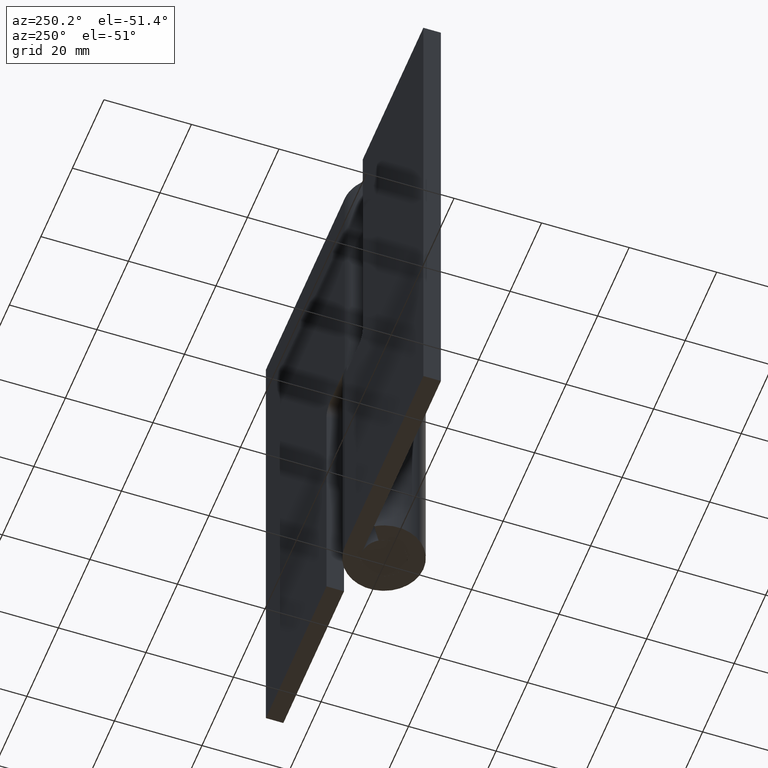
[diagram: clean part render]
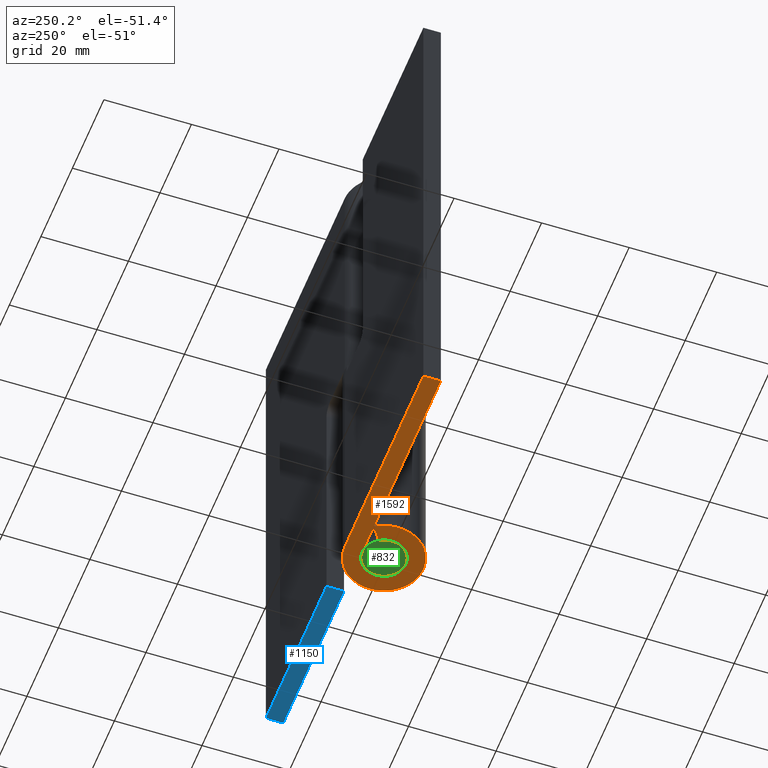
[diagram: same view with three faces highlighted in distinct colors, each labeled with its STEP entity id]
A machine part, auxiliary view with three faces highlighted in distinct colors.
Their STEP definitions:

[orange] entity #1592 — the highlighted face is a freeform B-spline surface patch.
#1515=CARTESIAN_POINT('',(-52.946972227244132,-9.893227405319044,0.0));
#1516=CARTESIAN_POINT('',(11.945583631738071,-9.893227405319044,0.0));
#1517=CARTESIAN_POINT('',(-52.946972227244132,9.898821068407905,0.0));
#1518=CARTESIAN_POINT('',(11.945583631738071,9.898821068407905,0.0));
#1519=B_SPLINE_SURFACE_WITH_KNOTS('',1,1,((#1515,#1517),(#1516,#1518)),.UNSPECIFIED.,.F.,.F.,.U.,(2,2),(2,2),(0.0,64.892555858982206),(0.0,19.792048473726950),.UNSPECIFIED.);
#1520=CARTESIAN_POINT('',(-49.999991999999899,5.0,0.0));
#1521=VERTEX_POINT('',#1520);
#1522=CARTESIAN_POINT('',(-49.999991999999899,9.0,0.0));
#1523=VERTEX_POINT('',#1522);
#1524=CARTESIAN_POINT('',(-49.999991999999899,5.0,0.0));
#1525=CARTESIAN_POINT('',(-49.999991999999899,9.0,0.0));
#1526=QUASI_UNIFORM_CURVE('',1,(#1524,#1525),.UNSPECIFIED.,.F.,.U.);
#1527=EDGE_CURVE('',#1521,#1523,#1526,.T.);
#1528=ORIENTED_EDGE('',*,*,#1527,.T.);
#1529=CARTESIAN_POINT('',(0.0,9.0,0.0));
#1530=VERTEX_POINT('',#1529);
#1531=CARTESIAN_POINT('',(-49.999991999999899,9.0,0.0));
#1532=CARTESIAN_POINT('',(0.0,9.0,0.0));
#1533=QUASI_UNIFORM_CURVE('',1,(#1531,#1532),.UNSPECIFIED.,.F.,.U.);
#1534=EDGE_CURVE('',#1523,#1530,#1533,.T.);
#1535=ORIENTED_EDGE('',*,*,#1534,.T.);
#1536=CARTESIAN_POINT('',(-7.516481889820520,4.950000000000000,0.0));
#1537=VERTEX_POINT('',#1536);
#1538=CARTESIAN_POINT('',(0.0,9.0,0.0));
#1539=CARTESIAN_POINT('',(7.011576975452233,9.0,0.0));
#1540=CARTESIAN_POINT('',(8.726614701295084,2.201407698528493,0.0));
#1541=CARTESIAN_POINT('',(10.441652427137935,-4.597184602943015,0.0));
#1542=CARTESIAN_POINT('',(4.269074841227313,-7.923067587746552,0.0));
#1543=CARTESIAN_POINT('',(-1.903502744683306,-11.248950572550088,0.0));
#1544=CARTESIAN_POINT('',(-6.638175985501282,-6.077385917112231,0.0));
#1545=CARTESIAN_POINT('',(-11.372849226319254,-0.905821261674372,0.0));
#1546=CARTESIAN_POINT('',(-7.516481889820531,4.949999999999997,0.0));
#1554=(BOUNDED_CURVE()B_SPLINE_CURVE(2,(#1538,#1539,#1540,#1541,#1542,#1543,#1544,#1545,#1546),.UNSPECIFIED.,.F.,.U.)B_SPLINE_CURVE_WITH_KNOTS((3,2,2,2,3),(0.0,0.250000000000000,0.500000000000000,0.750000000000000,1.0),.UNSPECIFIED.)CURVE()GEOMETRIC_REPRESENTATION_ITEM()RATIONAL_B_SPLINE_CURVE((1.0,0.788860207955774,1.0,0.788860207955774,1.0,0.788860207955774,1.0,0.788860207955774,1.0))REPRESENTATION_ITEM(''));
#1555=EDGE_CURVE('',#1530,#1537,#1554,.T.);
#1556=ORIENTED_EDGE('',*,*,#1555,.T.);
#1557=CARTESIAN_POINT('',(-4.175823272122515,2.750000000000000,0.0));
#1558=VERTEX_POINT('',#1557);
#1559=CARTESIAN_POINT('',(-7.516481889820520,4.950000000000000,0.0));
#1560=CARTESIAN_POINT('',(-4.175823272122515,2.750000000000000,0.0));
#1561=QUASI_UNIFORM_CURVE('',1,(#1559,#1560),.UNSPECIFIED.,.F.,.U.);
#1562=EDGE_CURVE('',#1537,#1558,#1561,.T.);
#1563=ORIENTED_EDGE('',*,*,#1562,.T.);
#1564=CARTESIAN_POINT('',(-1.914294E-015,5.0,0.0));
#1565=VERTEX_POINT('',#1564);
#1566=CARTESIAN_POINT('',(0.0,5.0,0.0));
#1567=CARTESIAN_POINT('',(3.895320541917908,5.0,0.0));
#1568=CARTESIAN_POINT('',(4.848119278497269,1.223004276960274,0.0));
#1569=CARTESIAN_POINT('',(5.800918015076634,-2.553991446079455,0.0));
#1570=CARTESIAN_POINT('',(2.371708245126286,-4.401704215414752,0.0));
#1571=CARTESIAN_POINT('',(-1.057501524824059,-6.249416984750051,0.0));
#1572=CARTESIAN_POINT('',(-3.687875547500712,-3.376325509506795,0.0));
#1573=CARTESIAN_POINT('',(-6.318249570177365,-0.503234034263541,0.0));
#1574=CARTESIAN_POINT('',(-4.175823272122518,2.749999999999999,0.0));
#1582=(BOUNDED_CURVE()B_SPLINE_CURVE(2,(#1566,#1567,#1568,#1569,#1570,#1571,#1572,#1573,#1574),.UNSPECIFIED.,.F.,.U.)B_SPLINE_CURVE_WITH_KNOTS((3,2,2,2,3),(0.0,0.250000000000000,0.500000000000000,0.750000000000000,1.0),.UNSPECIFIED.)CURVE()GEOMETRIC_REPRESENTATION_ITEM()RATIONAL_B_SPLINE_CURVE((1.0,0.788860207955774,1.0,0.788860207955774,1.0,0.788860207955774,1.0,0.788860207955774,1.0))REPRESENTATION_ITEM(''));
#1583=EDGE_CURVE('',#1565,#1558,#1582,.T.);
#1584=ORIENTED_EDGE('',*,*,#1583,.F.);
#1585=CARTESIAN_POINT('',(-1.914294E-015,5.0,0.0));
#1586=CARTESIAN_POINT('',(-49.999991999999899,5.0,0.0));
#1587=QUASI_UNIFORM_CURVE('',1,(#1585,#1586),.UNSPECIFIED.,.F.,.U.);
#1588=EDGE_CURVE('',#1565,#1521,#1587,.T.);
#1589=ORIENTED_EDGE('',*,*,#1588,.T.);
#1590=EDGE_LOOP('',(#1528,#1535,#1556,#1563,#1584,#1589));
#1591=FACE_OUTER_BOUND('',#1590,.T.);
#1592=ADVANCED_FACE('',(#1591),#1519,.F.);

[blue] entity #1150 — the highlighted face is a freeform B-spline surface patch.
#900=CARTESIAN_POINT('',(11.500000000000000,9.0,0.0));
#901=VERTEX_POINT('',#900);
#907=CARTESIAN_POINT('',(11.500000000000000,5.0,0.0));
#908=VERTEX_POINT('',#907);
#909=CARTESIAN_POINT('',(11.500000000000000,9.0,0.0));
#910=CARTESIAN_POINT('',(11.500000000000000,5.0,0.0));
#911=QUASI_UNIFORM_CURVE('',1,(#909,#910),.UNSPECIFIED.,.F.,.U.);
#912=EDGE_CURVE('',#901,#908,#911,.T.);
#1123=CARTESIAN_POINT('',(9.576925074620473,4.800200007752776,0.0));
#1124=CARTESIAN_POINT('',(51.923075958029997,4.800200007752776,0.0));
#1125=CARTESIAN_POINT('',(9.576925074620473,9.199800099535585,0.0));
#1126=CARTESIAN_POINT('',(51.923075958029997,9.199800099535585,0.0));
#1127=B_SPLINE_SURFACE_WITH_KNOTS('',1,1,((#1123,#1125),(#1124,#1126)),.UNSPECIFIED.,.F.,.F.,.U.,(2,2),(2,2),(0.0,42.346150883409521),(0.0,4.399600091782808),.UNSPECIFIED.);
#1128=ORIENTED_EDGE('',*,*,#912,.F.);
#1129=CARTESIAN_POINT('',(50.0,9.0,0.0));
#1130=VERTEX_POINT('',#1129);
#1131=CARTESIAN_POINT('',(11.500000000000000,9.0,0.0));
#1132=CARTESIAN_POINT('',(50.0,9.0,0.0));
#1133=QUASI_UNIFORM_CURVE('',1,(#1131,#1132),.UNSPECIFIED.,.F.,.U.);
#1134=EDGE_CURVE('',#901,#1130,#1133,.T.);
#1135=ORIENTED_EDGE('',*,*,#1134,.T.);
#1136=CARTESIAN_POINT('',(50.0,5.0,0.0));
#1137=VERTEX_POINT('',#1136);
#1138=CARTESIAN_POINT('',(50.0,9.0,0.0));
#1139=CARTESIAN_POINT('',(50.0,5.0,0.0));
#1140=QUASI_UNIFORM_CURVE('',1,(#1138,#1139),.UNSPECIFIED.,.F.,.U.);
#1141=EDGE_CURVE('',#1130,#1137,#1140,.T.);
#1142=ORIENTED_EDGE('',*,*,#1141,.T.);
#1143=CARTESIAN_POINT('',(50.0,5.0,0.0));
#1144=CARTESIAN_POINT('',(11.500000000000000,5.0,0.0));
#1145=QUASI_UNIFORM_CURVE('',1,(#1143,#1144),.UNSPECIFIED.,.F.,.U.);
#1146=EDGE_CURVE('',#1137,#908,#1145,.T.);
#1147=ORIENTED_EDGE('',*,*,#1146,.T.);
#1148=EDGE_LOOP('',(#1128,#1135,#1142,#1147));
#1149=FACE_OUTER_BOUND('',#1148,.T.);
#1150=ADVANCED_FACE('',(#1149),#1127,.F.);

[green] entity #832 — the highlighted face is a freeform B-spline surface patch.
#543=CARTESIAN_POINT('',(0.305242697868242,-4.990673992097471,-8.881784E-016));
#544=VERTEX_POINT('',#543);
#550=CARTESIAN_POINT('',(5.0,0.0,0.0));
#551=VERTEX_POINT('',#550);
#552=CARTESIAN_POINT('',(5.0,0.0,0.0));
#553=CARTESIAN_POINT('',(4.999999999999999,-4.703530334162168,0.0));
#554=CARTESIAN_POINT('',(0.305242697868242,-4.990673992097471,-8.881784E-016));
#562=(BOUNDED_CURVE()B_SPLINE_CURVE(2,(#552,#553,#554),.UNSPECIFIED.,.F.,.U.)B_SPLINE_CURVE_WITH_KNOTS((3,3),(0.500000000000000,0.739332962228556),.UNSPECIFIED.)CURVE()GEOMETRIC_REPRESENTATION_ITEM()RATIONAL_B_SPLINE_CURVE((1.0,0.719603993298880,0.976072041644456))REPRESENTATION_ITEM(''));
#563=EDGE_CURVE('',#551,#544,#562,.T.);
#565=CARTESIAN_POINT('',(4.680719087080684,1.758086695196526,5.635189E-015));
#566=VERTEX_POINT('',#565);
#567=CARTESIAN_POINT('',(4.680719087080684,1.758086695196526,5.635189E-015));
#568=CARTESIAN_POINT('',(5.0,0.908035177646552,0.0));
#569=CARTESIAN_POINT('',(5.0,0.0,0.0));
#577=(BOUNDED_CURVE()B_SPLINE_CURVE(2,(#567,#568,#569),.UNSPECIFIED.,.F.,.U.)B_SPLINE_CURVE_WITH_KNOTS((3,3),(0.440284278098072,0.500000000000000),.UNSPECIFIED.)CURVE()GEOMETRIC_REPRESENTATION_ITEM()RATIONAL_B_SPLINE_CURVE((0.893499685822202,0.930038679993502,1.0))REPRESENTATION_ITEM(''));
#578=EDGE_CURVE('',#566,#551,#577,.T.);
#628=CARTESIAN_POINT('',(-5.0,0.0,0.0));
#629=VERTEX_POINT('',#628);
#630=CARTESIAN_POINT('',(-5.0,0.0,0.0));
#631=CARTESIAN_POINT('',(-5.000000000000001,5.000000000000001,0.0));
#632=CARTESIAN_POINT('',(0.0,5.0,0.0));
#633=CARTESIAN_POINT('',(3.463050489133572,5.0,0.0));
#634=CARTESIAN_POINT('',(4.680719087080684,1.758086695196526,5.635189E-015));
#642=(BOUNDED_CURVE()B_SPLINE_CURVE(2,(#630,#631,#632,#633,#634),.UNSPECIFIED.,.F.,.U.)B_SPLINE_CURVE_WITH_KNOTS((3,2,3),(0.0,0.250000000000000,0.440284278098072),.UNSPECIFIED.)CURVE()GEOMETRIC_REPRESENTATION_ITEM()RATIONAL_B_SPLINE_CURVE((1.0,0.707106781186548,1.0,0.777068101193046,0.893499685822202))REPRESENTATION_ITEM(''));
#643=EDGE_CURVE('',#629,#566,#642,.T.);
#645=CARTESIAN_POINT('',(0.305242697868242,-4.990673992097471,-8.881784E-016));
#646=CARTESIAN_POINT('',(0.152763816687446,-4.999999999999999,0.0));
#647=CARTESIAN_POINT('',(0.0,-5.0,0.0));
#648=CARTESIAN_POINT('',(-5.000000000000001,-5.000000000000001,0.0));
#649=CARTESIAN_POINT('',(-5.0,0.0,0.0));
#657=(BOUNDED_CURVE()B_SPLINE_CURVE(2,(#645,#646,#647,#648,#649),.UNSPECIFIED.,.F.,.U.)B_SPLINE_CURVE_WITH_KNOTS((3,2,3),(0.739332962228557,0.750000000000000,1.0),.UNSPECIFIED.)CURVE()GEOMETRIC_REPRESENTATION_ITEM()RATIONAL_B_SPLINE_CURVE((0.976072041644458,0.987502787887669,1.0,0.707106781186548,1.0))REPRESENTATION_ITEM(''));
#658=EDGE_CURVE('',#544,#629,#657,.T.);
#821=CARTESIAN_POINT('',(-5.499499980618060,-5.499378106426892,0.0));
#822=CARTESIAN_POINT('',(5.499500248838961,-5.499378106426892,0.0));
#823=CARTESIAN_POINT('',(-5.499499980618060,5.499405286144910,0.0));
#824=CARTESIAN_POINT('',(5.499500248838961,5.499405286144910,0.0));
#825=B_SPLINE_SURFACE_WITH_KNOTS('',1,1,((#821,#823),(#822,#824)),.UNSPECIFIED.,.F.,.F.,.U.,(2,2),(2,2),(0.0,10.999000229457019),(0.0,10.998783392571800),.UNSPECIFIED.);
#826=ORIENTED_EDGE('',*,*,#643,.T.);
#827=ORIENTED_EDGE('',*,*,#578,.T.);
#828=ORIENTED_EDGE('',*,*,#563,.T.);
#829=ORIENTED_EDGE('',*,*,#658,.T.);
#830=EDGE_LOOP('',(#826,#827,#828,#829));
#831=FACE_OUTER_BOUND('',#830,.T.);
#832=ADVANCED_FACE('',(#831),#825,.F.);